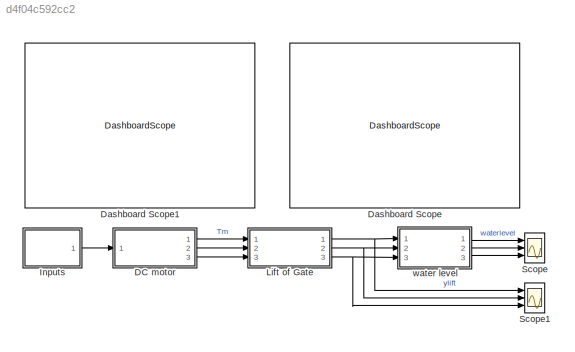
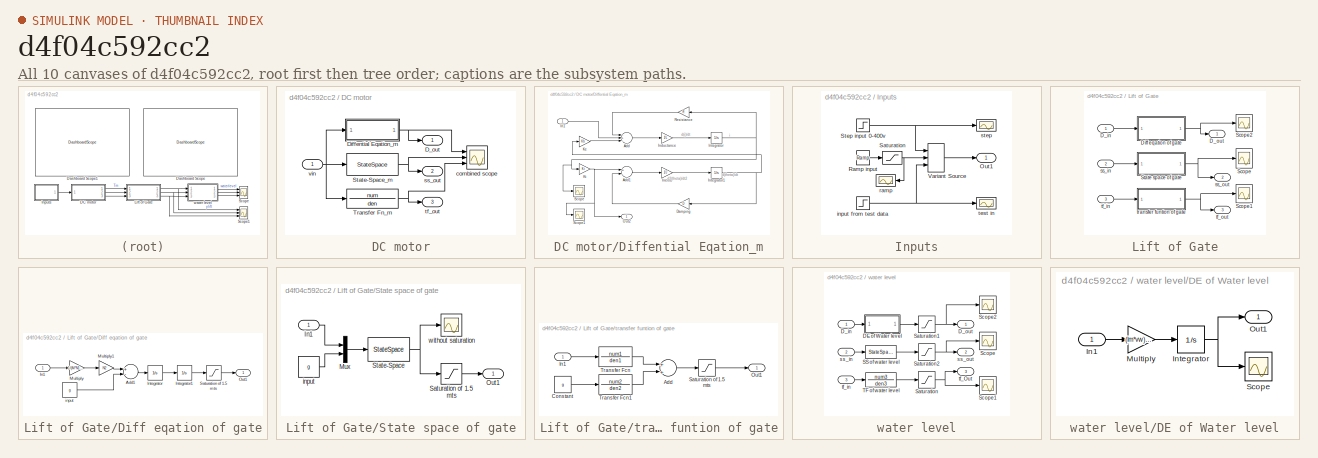
[diagram: thumbnail index - all 10 canvases of the model, root first then tree order]
MODEL slx_d4f04c592cc2
KIND model
CONFIG AbsTol = auto
CONFIG EnableMultiTasking = off
CONFIG FixedStep = auto
CONFIG MaxStep = auto
CONFIG MinStep = auto
CONFIG RelTol = 1e-3
CONFIG SampleTimeConstraint = Unconstrained
CONFIG Solver = VariableStepAuto
CONFIG SolverName = VariableStepAuto
CONFIG StartTime = 0.0
CONFIG StopTime = sim_time 
BLOCK [SubSystem] DC motor
  Ports = [1, 3]
  RequestExecContextInheritance = off
BLOCK [Outport] DC motor/D_out
  IconDisplay = Port number
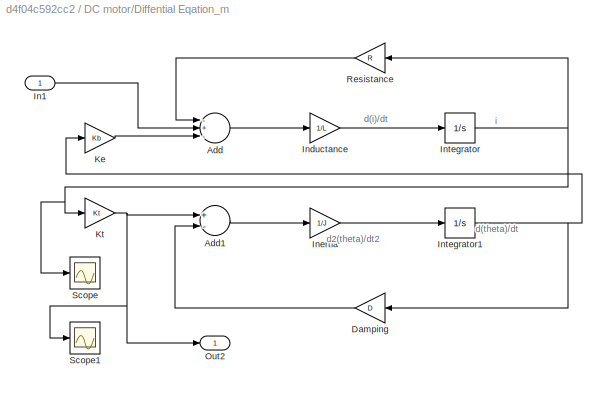
BLOCK [SubSystem] DC motor/Diffential Eqation_m
  Ports = [1, 1]
  RequestExecContextInheritance = off
BLOCK [Sum] DC motor/Diffential Eqation_m/Add
  InputSameDT = off
  Inputs = -+-
  OutDataTypeStr = Inherit: Inherit via internal rule
  Ports = [3, 1]
  SaturateOnIntegerOverflow = off
BLOCK [Sum] DC motor/Diffential Eqation_m/Add1
  InputSameDT = off
  Inputs = +-
  OutDataTypeStr = Inherit: Inherit via internal rule
  Ports = [2, 1]
  SaturateOnIntegerOverflow = off
BLOCK [Gain] DC motor/Diffential Eqation_m/Damping
  Gain = D
  OutDataTypeStr = Inherit: Inherit via internal rule
  ParamDataTypeStr = Inherit: Inherit via internal rule
  SaturateOnIntegerOverflow = off
BLOCK [Inport] DC motor/Diffential Eqation_m/In1
  IconDisplay = Port number
BLOCK [Gain] DC motor/Diffential Eqation_m/Inductance
  Gain = 1/L
  OutDataTypeStr = Inherit: Inherit via internal rule
  ParamDataTypeStr = Inherit: Inherit via internal rule
  SaturateOnIntegerOverflow = off
BLOCK [Gain] DC motor/Diffential Eqation_m/Inertia
  Gain = 1/J
  OutDataTypeStr = Inherit: Inherit via internal rule
  ParamDataTypeStr = Inherit: Inherit via internal rule
  SaturateOnIntegerOverflow = off
BLOCK [Integrator] DC motor/Diffential Eqation_m/Integrator
  Ports = [1, 1]
BLOCK [Integrator] DC motor/Diffential Eqation_m/Integrator1
  Ports = [1, 1]
BLOCK [Gain] DC motor/Diffential Eqation_m/Ke
  Gain = Kb
  OutDataTypeStr = Inherit: Inherit via internal rule
  ParamDataTypeStr = Inherit: Inherit via internal rule
  SaturateOnIntegerOverflow = off
BLOCK [Gain] DC motor/Diffential Eqation_m/Kt
  Gain = Kt
  OutDataTypeStr = Inherit: Inherit via internal rule
  ParamDataTypeStr = Inherit: Inherit via internal rule
  SaturateOnIntegerOverflow = off
BLOCK [Outport] DC motor/Diffential Eqation_m/Out2
  IconDisplay = Port number
BLOCK [Gain] DC motor/Diffential Eqation_m/Resistance
  Gain = R
  OutDataTypeStr = Inherit: Inherit via internal rule
  ParamDataTypeStr = Inherit: Inherit via internal rule
  SaturateOnIntegerOverflow = off
BLOCK [Scope] DC motor/Diffential Eqation_m/Scope
  Floating = off
  NumInputPorts = 1
  Ports = [1]
  ScopeSpecificationString = Simulink.scopes.TimeScopeBlockCfg('CurrentConfiguration', extmgr.ConfigurationSet(extmgr.Configuration('Core','General UI',true),extmgr.Configuration('Core','Source UI',true),extmgr.Configuration('Sources','WiredSimulink',true,'DataLoggingVariableName','i','DataLogging',true,'DataLoggingSaveFormat','Array'),extmgr.Configuration('Visuals','Time Domain',true,'SerializedDisplays',{struct('MinYLimReal...<+1452ch>
BLOCK [Scope] DC motor/Diffential Eqation_m/Scope1
  Floating = off
  NumInputPorts = 1
  Ports = [1]
  ScopeSpecificationString = Simulink.scopes.TimeScopeBlockCfg('CurrentConfiguration', extmgr.ConfigurationSet(extmgr.Configuration('Core','General UI',true),extmgr.Configuration('Core','Source UI',true),extmgr.Configuration('Sources','WiredSimulink',true,'DataLoggingVariableName','tm','DataLogging',true,'DataLoggingSaveFormat','Array'),extmgr.Configuration('Visuals','Time Domain',true,'SerializedDisplays',{struct('MinYLimRea...<+1453ch>
BLOCK [StateSpace] DC motor/State-Space_m 
  A = A_mat_m
  B = B_mat_m
  C = C_mat_m
  D = D_mat_m
  InitialCondition = 0
  Ports = [1, 1]
BLOCK [TransferFcn] DC motor/Transfer Fn_m
  Denominator = den
  Numerator = num
BLOCK [Scope] DC motor/combined scope
  Floating = off
  NumInputPorts = 3
  Ports = [3]
  ScopeSpecificationString = Simulink.scopes.TimeScopeBlockCfg('CurrentConfiguration', extmgr.ConfigurationSet(extmgr.Configuration('Core','General UI',true),extmgr.Configuration('Core','Source UI',true),extmgr.Configuration('Sources','WiredSimulink',true),extmgr.Configuration('Visuals','Time Domain',true,'SerializedDisplays',{struct('MinYLimReal','1105.10383','MaxYLimReal','1589.54449','YLabelReal','','MinYLimMag','1105.1038...<+1470ch>
BLOCK [Outport] DC motor/ss_out
  IconDisplay = Port number
  Port = 2
BLOCK [Outport] DC motor/tf_out
  IconDisplay = Port number
  Port = 3
BLOCK [Inport] DC motor/vin
  IconDisplay = Port number
BLOCK [DashboardScope] Dashboard Scope
  Ymax = 21
BLOCK [DashboardScope] Dashboard Scope1
BLOCK [SubSystem] Inputs
  Ports = [0, 1]
  RequestExecContextInheritance = off
BLOCK [Step] Inputs/ input from test data
  After = 400
  SampleTime = 0
  Time = 0
BLOCK [Outport] Inputs/Out1
  IconDisplay = Port number
BLOCK [Reference] Inputs/Ramp input   REF=simulink/Sources/Ramp
  Ports = [0, 1]
  SourceBlock = simulink/Sources/Ramp
  SourceProductBaseCode = SL
  SourceProductName = Simulink
  SourceType = Ramp
BLOCK [Saturate] Inputs/Saturation
  InputPortMap = u0
  LowerLimit = 0
  Ports = [1, 1]
  UpperLimit = 400
BLOCK [Step] Inputs/Step input 0-400v
  After = Step_input
  SampleTime = 0
  Time = step_time
BLOCK [VariantSource] Inputs/Variant Source 
  Ports = [3, 1]
BLOCK [Scope] Inputs/ramp
  Floating = off
  NumInputPorts = 1
  Ports = [1]
  ScopeSpecificationString = Simulink.scopes.TimeScopeBlockCfg('CurrentConfiguration', extmgr.ConfigurationSet(extmgr.Configuration('Core','General UI',true),extmgr.Configuration('Core','Source UI',true),extmgr.Configuration('Sources','WiredSimulink',true,'DataLoggingVariableName','in2','DataLogging',true,'DataLoggingSaveFormat','Array'),extmgr.Configuration('Visuals','Time Domain',true,'SerializedDisplays',{struct('MinYLimRe...<+1450ch>
BLOCK [Scope] Inputs/step
  Floating = off
  NumInputPorts = 1
  Ports = [1]
  ScopeSpecificationString = Simulink.scopes.TimeScopeBlockCfg('CurrentConfiguration', extmgr.ConfigurationSet(extmgr.Configuration('Core','General UI',true),extmgr.Configuration('Core','Source UI',true),extmgr.Configuration('Sources','WiredSimulink',true,'DataLoggingVariableName','in','DataLogging',true,'DataLoggingSaveFormat','Array'),extmgr.Configuration('Visuals','Time Domain',true,'SerializedDisplays',{struct('MinYLimRea...<+1429ch>
BLOCK [Scope] Inputs/test in
  Floating = off
  NumInputPorts = 1
  Ports = [1]
  ScopeSpecificationString = Simulink.scopes.TimeScopeBlockCfg('CurrentConfiguration', extmgr.ConfigurationSet(extmgr.Configuration('Core','General UI',true),extmgr.Configuration('Core','Source UI',true),extmgr.Configuration('Sources','WiredSimulink',true,'DataLoggingVariableName','tin','DataLogging',true,'DataLoggingSaveFormat','Array'),extmgr.Configuration('Visuals','Time Domain',true,'SerializedDisplays',{struct('MinYLimRe...<+1438ch>
BLOCK [SubSystem] Lift of Gate
  Ports = [3, 3]
  RequestExecContextInheritance = off
BLOCK [Inport] Lift of Gate/D_in
  IconDisplay = Port number
BLOCK [Outport] Lift of Gate/D_out
  IconDisplay = Port number
BLOCK [SubSystem] Lift of Gate/Diff eqation of gate
  Ports = [1, 1]
  RequestExecContextInheritance = off
BLOCK [Sum] Lift of Gate/Diff eqation of gate/Add1
  InputSameDT = off
  Inputs = +-
  OutDataTypeStr = Inherit: Inherit via internal rule
  Ports = [2, 1]
  SaturateOnIntegerOverflow = off
BLOCK [Inport] Lift of Gate/Diff eqation of gate/In1
  IconDisplay = Port number
BLOCK [Integrator] Lift of Gate/Diff eqation of gate/Integrator
  Ports = [1, 1]
BLOCK [Integrator] Lift of Gate/Diff eqation of gate/Integrator1
  Ports = [1, 1]
BLOCK [Gain] Lift of Gate/Diff eqation of gate/Multiply
  Gain = 1/(M*N1*rp)
  OutDataTypeStr = Inherit: Inherit via internal rule
  ParamDataTypeStr = Inherit: Inherit via internal rule
  SaturateOnIntegerOverflow = off
BLOCK [Gain] Lift of Gate/Diff eqation of gate/Multiply1
  Gain = N2
  OutDataTypeStr = Inherit: Inherit via internal rule
  ParamDataTypeStr = Inherit: Inherit via internal rule
  SaturateOnIntegerOverflow = off
BLOCK [Outport] Lift of Gate/Diff eqation of gate/Out1
  IconDisplay = Port number
BLOCK [Saturate] Lift of Gate/Diff eqation of gate/Saturation of 1.5 mts
  InputPortMap = u0
  LowerLimit = 0
  Ports = [1, 1]
  UpperLimit = 1.5
BLOCK [Constant] Lift of Gate/Diff eqation of gate/input
  Value = g
BLOCK [Scope] Lift of Gate/Scope
  Floating = off
  NumInputPorts = 1
  Ports = [1]
  ScopeSpecificationString = Simulink.scopes.TimeScopeBlockCfg('CurrentConfiguration', extmgr.ConfigurationSet(extmgr.Configuration('Core','General UI',true),extmgr.Configuration('Core','Source UI',true),extmgr.Configuration('Sources','WiredSimulink',true,'DataLoggingVariableName','sslift','DataLogging',true,'DataLoggingSaveFormat','Array'),extmgr.Configuration('Visuals','Time Domain',true,'SerializedDisplays',{struct('MinYLi...<+1419ch>
BLOCK [Scope] Lift of Gate/Scope1
  Floating = off
  NumInputPorts = 1
  Ports = [1]
  ScopeSpecificationString = Simulink.scopes.TimeScopeBlockCfg('CurrentConfiguration', extmgr.ConfigurationSet(extmgr.Configuration('Core','General UI',true),extmgr.Configuration('Core','Source UI',true),extmgr.Configuration('Sources','WiredSimulink',true,'DataLoggingVariableName','tflift','DataLogging',true,'DataLoggingSaveFormat','Array'),extmgr.Configuration('Visuals','Time Domain',true,'SerializedDisplays',{struct('MinYLi...<+1454ch>
BLOCK [Scope] Lift of Gate/Scope2
  Floating = off
  NumInputPorts = 1
  Ports = [1]
  ScopeSpecificationString = Simulink.scopes.TimeScopeBlockCfg('CurrentConfiguration', extmgr.ConfigurationSet(extmgr.Configuration('Core','General UI',true),extmgr.Configuration('Core','Source UI',true),extmgr.Configuration('Sources','WiredSimulink',true,'DataLoggingVariableName','glift','DataLogging',true,'DataLoggingSaveFormat','Array'),extmgr.Configuration('Visuals','Time Domain',true,'SerializedDisplays',{struct('MinYLim...<+1419ch>
BLOCK [SubSystem] Lift of Gate/State space of gate
  Ports = [1, 1]
  RequestExecContextInheritance = off
BLOCK [Inport] Lift of Gate/State space of gate/In1
  IconDisplay = Port number
BLOCK [Mux] Lift of Gate/State space of gate/Mux
  DisplayOption = signals
  Inputs = 2
  Ports = [2, 1]
BLOCK [Outport] Lift of Gate/State space of gate/Out1
  IconDisplay = Port number
BLOCK [Saturate] Lift of Gate/State space of gate/Saturation of 1.5 mts
  InputPortMap = u0
  LowerLimit = 0
  Ports = [1, 1]
  UpperLimit = 1.5
BLOCK [StateSpace] Lift of Gate/State space of gate/State-Space
  A = A_mat_d
  B = B_mat_d
  C = C_mat_d
  D = D_mat_d
  InitialCondition = 0
  Ports = [1, 1]
BLOCK [Constant] Lift of Gate/State space of gate/input
  Value = g
BLOCK [Scope] Lift of Gate/State space of gate/without saturation
  Floating = off
  NumInputPorts = 1
  Ports = [1]
  ScopeSpecificationString = Simulink.scopes.TimeScopeBlockCfg('CurrentConfiguration', extmgr.ConfigurationSet(extmgr.Configuration('Core','General UI',true),extmgr.Configuration('Core','Source UI',true),extmgr.Configuration('Sources','WiredSimulink',true,'DataLoggingVariableName','ScopeData1'),extmgr.Configuration('Visuals','Time Domain',true,'SerializedDisplays',{struct('MinYLimReal','-80.25487','MaxYLimReal','713.03494','Y...<+1407ch>
BLOCK [Inport] Lift of Gate/ss_in
  IconDisplay = Port number
  Port = 2
BLOCK [Outport] Lift of Gate/ss_out
  IconDisplay = Port number
  Port = 2
BLOCK [Inport] Lift of Gate/tf_in
  IconDisplay = Port number
  Port = 3
BLOCK [Outport] Lift of Gate/tf_out
  IconDisplay = Port number
  Port = 3
BLOCK [SubSystem] Lift of Gate/transfer funtion of gate
  Ports = [1, 1]
  RequestExecContextInheritance = off
BLOCK [Sum] Lift of Gate/transfer funtion of gate/Add
  InputSameDT = off
  OutDataTypeStr = Inherit: Inherit via internal rule
  Ports = [2, 1]
  SaturateOnIntegerOverflow = off
BLOCK [Constant] Lift of Gate/transfer funtion of gate/Constant
  Value = g
BLOCK [Inport] Lift of Gate/transfer funtion of gate/In1
  IconDisplay = Port number
BLOCK [Outport] Lift of Gate/transfer funtion of gate/Out1
  IconDisplay = Port number
BLOCK [Saturate] Lift of Gate/transfer funtion of gate/Saturation of 1.5 mts
  InputPortMap = u0
  LowerLimit = 0
  Ports = [1, 1]
  UpperLimit = 1.5
BLOCK [TransferFcn] Lift of Gate/transfer funtion of gate/Transfer Fcn
  Denominator = den1
  Numerator = num1
BLOCK [TransferFcn] Lift of Gate/transfer funtion of gate/Transfer Fcn1
  Denominator = den2
  Numerator = num2
BLOCK [Scope] Scope
  Floating = off
  NumInputPorts = 3
  Ports = [3]
  ScopeSpecificationString = Simulink.scopes.TimeScopeBlockCfg('CurrentConfiguration', extmgr.ConfigurationSet(extmgr.Configuration('Core','General UI',true),extmgr.Configuration('Core','Source UI',true),extmgr.Configuration('Sources','WiredSimulink',true,'DataLoggingVariableName','ScopeData4','DataLogging',true,'DataLoggingSaveFormat','Structure'),extmgr.Configuration('Visuals','Time Domain',true,'SerializedDisplays',{struct...<+1490ch>
BLOCK [Scope] Scope1
  Floating = off
  NumInputPorts = 3
  Ports = [3]
  ScopeSpecificationString = Simulink.scopes.TimeScopeBlockCfg('CurrentConfiguration', extmgr.ConfigurationSet(extmgr.Configuration('Core','General UI',true),extmgr.Configuration('Core','Source UI',true),extmgr.Configuration('Sources','WiredSimulink',true,'DataLoggingVariableName','ScopeData5'),extmgr.Configuration('Visuals','Time Domain',true,'SerializedDisplays',{struct('MinYLimReal','-0.1875','MaxYLimReal','1.6875','YLabel...<+1419ch>
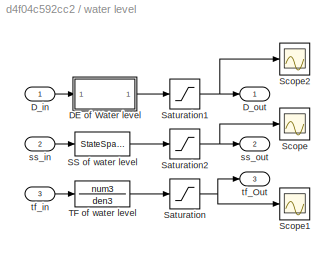
BLOCK [SubSystem] water level
  Ports = [3, 3]
  RequestExecContextInheritance = off
BLOCK [SubSystem] water level/DE of Water level
  Ports = [1, 1]
  RequestExecContextInheritance = off
BLOCK [Inport] water level/DE of Water level/In1
  IconDisplay = Port number
BLOCK [Integrator] water level/DE of Water level/Integrator
  Ports = [1, 1]
BLOCK [Gain] water level/DE of Water level/Multiply
  Gain = (lm*vw)/(Ar)
  OutDataTypeStr = Inherit: Inherit via internal rule
  ParamDataTypeStr = Inherit: Inherit via internal rule
  SaturateOnIntegerOverflow = off
BLOCK [Outport] water level/DE of Water level/Out1
  IconDisplay = Port number
BLOCK [Scope] water level/DE of Water level/Scope
  Floating = off
  NumInputPorts = 1
  Ports = [1]
  ScopeSpecificationString = Simulink.scopes.TimeScopeBlockCfg('CurrentConfiguration', extmgr.ConfigurationSet(extmgr.Configuration('Core','General UI',true),extmgr.Configuration('Core','Source UI',true),extmgr.Configuration('Sources','WiredSimulink',true,'DataLoggingVariableName','ScopeData2'),extmgr.Configuration('Visuals','Time Domain',true,'SerializedDisplays',{struct('MinYLimReal','-0.12842','MaxYLimReal','1.15579','YLab...<+1396ch>
BLOCK [Inport] water level/D_in
  IconDisplay = Port number
BLOCK [Outport] water level/D_out
  IconDisplay = Port number
BLOCK [StateSpace] water level/SS of water level
  A = A_mat_wl
  B = B_mat_wl
  C = C_mat_wl
  D = D_mat_wl
  InitialCondition = 0
  Ports = [1, 1]
BLOCK [Saturate] water level/Saturation
  InputPortMap = u0
  LowerLimit = 0
  Ports = [1, 1]
  UpperLimit = 20
BLOCK [Saturate] water level/Saturation1
  InputPortMap = u0
  Ports = [1, 1]
  UpperLimit = 20
BLOCK [Saturate] water level/Saturation2
  InputPortMap = u0
  LowerLimit = 0
  Ports = [1, 1]
  UpperLimit = 20
BLOCK [Scope] water level/Scope
  Floating = off
  NumInputPorts = 1
  Ports = [1]
  ScopeSpecificationString = Simulink.scopes.TimeScopeBlockCfg('CurrentConfiguration', extmgr.ConfigurationSet(extmgr.Configuration('Core','General UI',true),extmgr.Configuration('Core','Source UI',true),extmgr.Configuration('Sources','WiredSimulink',true,'DataLoggingVariableName','sswl','DataLogging',true,'DataLoggingSaveFormat','Array'),extmgr.Configuration('Visuals','Time Domain',true,'SerializedDisplays',{struct('MinYLimR...<+1421ch>
BLOCK [Scope] water level/Scope1
  Floating = off
  NumInputPorts = 1
  Ports = [1]
  ScopeSpecificationString = Simulink.scopes.TimeScopeBlockCfg('CurrentConfiguration', extmgr.ConfigurationSet(extmgr.Configuration('Core','General UI',true),extmgr.Configuration('Core','Source UI',true),extmgr.Configuration('Sources','WiredSimulink',true,'DataLoggingVariableName','tfwl','DataLogging',true,'DataLoggingSaveFormat','Array'),extmgr.Configuration('Visuals','Time Domain',true,'SerializedDisplays',{struct('MinYLimR...<+1467ch>
BLOCK [Scope] water level/Scope2
  Floating = off
  NumInputPorts = 1
  Ports = [1]
  ScopeSpecificationString = Simulink.scopes.TimeScopeBlockCfg('CurrentConfiguration', extmgr.ConfigurationSet(extmgr.Configuration('Core','General UI',true),extmgr.Configuration('Core','Source UI',true),extmgr.Configuration('Sources','WiredSimulink',true,'DataLoggingVariableName','gwl','DataLogging',true,'DataLoggingSaveFormat','Array'),extmgr.Configuration('Visuals','Time Domain',true,'SerializedDisplays',{struct('MinYLimRe...<+1420ch>
BLOCK [TransferFcn] water level/TF of water level
  Denominator = den3
  Numerator = num3
BLOCK [Inport] water level/ss_in
  IconDisplay = Port number
  Port = 2
BLOCK [Outport] water level/ss_out
  IconDisplay = Port number
  Port = 2
BLOCK [Outport] water level/tf_Out
  IconDisplay = Port number
  Port = 3
BLOCK [Inport] water level/tf_in
  IconDisplay = Port number
  Port = 3
ANNOTATION DC motor/Diffential Eqation_m: d2 (theta) /dt2
ANNOTATION DC motor/Diffential Eqation_m: d (i) /dt
ANNOTATION DC motor/Diffential Eqation_m: d (theta) /dt
ANNOTATION DC motor/Diffential Eqation_m: i
LINE DC motor/Diffential Eqation_m/Add1:1 -> DC motor/Diffential Eqation_m/Inertia:1
LINE DC motor/Diffential Eqation_m/Add:1 -> DC motor/Diffential Eqation_m/Inductance:1
LINE DC motor/Diffential Eqation_m/Damping:1 -> DC motor/Diffential Eqation_m/Add1:2
LINE DC motor/Diffential Eqation_m/In1:1 -> DC motor/Diffential Eqation_m/Add:2
LINE DC motor/Diffential Eqation_m/Inductance:1 -> DC motor/Diffential Eqation_m/Integrator:1
LINE DC motor/Diffential Eqation_m/Inertia:1 -> DC motor/Diffential Eqation_m/Integrator1:1
NET DC motor/Diffential Eqation_m/Integrator1:1 -> DC motor/Diffential Eqation_m/Damping:1, DC motor/Diffential Eqation_m/Ke:1
NET DC motor/Diffential Eqation_m/Integrator:1 -> DC motor/Diffential Eqation_m/Kt:1, DC motor/Diffential Eqation_m/Resistance:1, DC motor/Diffential Eqation_m/Scope:1
LINE DC motor/Diffential Eqation_m/Ke:1 -> DC motor/Diffential Eqation_m/Add:3
NET DC motor/Diffential Eqation_m/Kt:1 -> DC motor/Diffential Eqation_m/Add1:1, DC motor/Diffential Eqation_m/Out2:1, DC motor/Diffential Eqation_m/Scope1:1
LINE DC motor/Diffential Eqation_m/Resistance:1 -> DC motor/Diffential Eqation_m/Add:1
NET DC motor/Diffential Eqation_m:1 -> DC motor/D_out:1, DC motor/combined scope:1
NET DC motor/State-Space_m :1 -> DC motor/combined scope:2, DC motor/ss_out:1
NET DC motor/Transfer Fn_m:1 -> DC motor/combined scope:3, DC motor/tf_out:1
NET DC motor/vin:1 -> DC motor/Diffential Eqation_m:1, DC motor/State-Space_m :1, DC motor/Transfer Fn_m:1
LINE DC motor:1 -> Lift of Gate:1
LINE DC motor:2 -> Lift of Gate:2
LINE DC motor:3 -> Lift of Gate:3
NET Inputs/ input from test data:1 -> Inputs/Variant Source :3, Inputs/test in:1
LINE Inputs/Ramp input :1 -> Inputs/Saturation:1
NET Inputs/Saturation:1 -> Inputs/Variant Source :2, Inputs/ramp:1
NET Inputs/Step input 0-400v:1 -> Inputs/Variant Source :1, Inputs/step:1
LINE Inputs/Variant Source :1 -> Inputs/Out1:1
LINE Inputs:1 -> DC motor:1
LINE Lift of Gate/D_in:1 -> Lift of Gate/Diff eqation of gate:1
LINE Lift of Gate/Diff eqation of gate/Add1:1 -> Lift of Gate/Diff eqation of gate/Integrator:1
LINE Lift of Gate/Diff eqation of gate/In1:1 -> Lift of Gate/Diff eqation of gate/Multiply:1
LINE Lift of Gate/Diff eqation of gate/Integrator1:1 -> Lift of Gate/Diff eqation of gate/Saturation of 1.5 mts:1
LINE Lift of Gate/Diff eqation of gate/Integrator:1 -> Lift of Gate/Diff eqation of gate/Integrator1:1
LINE Lift of Gate/Diff eqation of gate/Multiply1:1 -> Lift of Gate/Diff eqation of gate/Add1:1
LINE Lift of Gate/Diff eqation of gate/Multiply:1 -> Lift of Gate/Diff eqation of gate/Multiply1:1
LINE Lift of Gate/Diff eqation of gate/Saturation of 1.5 mts:1 -> Lift of Gate/Diff eqation of gate/Out1:1
LINE Lift of Gate/Diff eqation of gate/input:1 -> Lift of Gate/Diff eqation of gate/Add1:2
NET Lift of Gate/Diff eqation of gate:1 -> Lift of Gate/D_out:1, Lift of Gate/Scope2:1
LINE Lift of Gate/State space of gate/In1:1 -> Lift of Gate/State space of gate/Mux:1
LINE Lift of Gate/State space of gate/Mux:1 -> Lift of Gate/State space of gate/State-Space:1
LINE Lift of Gate/State space of gate/Saturation of 1.5 mts:1 -> Lift of Gate/State space of gate/Out1:1
NET Lift of Gate/State space of gate/State-Space:1 -> Lift of Gate/State space of gate/Saturation of 1.5 mts:1, Lift of Gate/State space of gate/without saturation:1
LINE Lift of Gate/State space of gate/input:1 -> Lift of Gate/State space of gate/Mux:2
NET Lift of Gate/State space of gate:1 -> Lift of Gate/Scope:1, Lift of Gate/ss_out:1
LINE Lift of Gate/ss_in:1 -> Lift of Gate/State space of gate:1
LINE Lift of Gate/tf_in:1 -> Lift of Gate/transfer funtion of gate:1
LINE Lift of Gate/transfer funtion of gate/Add:1 -> Lift of Gate/transfer funtion of gate/Saturation of 1.5 mts:1
LINE Lift of Gate/transfer funtion of gate/Constant:1 -> Lift of Gate/transfer funtion of gate/Transfer Fcn1:1
LINE Lift of Gate/transfer funtion of gate/In1:1 -> Lift of Gate/transfer funtion of gate/Transfer Fcn:1
LINE Lift of Gate/transfer funtion of gate/Saturation of 1.5 mts:1 -> Lift of Gate/transfer funtion of gate/Out1:1
LINE Lift of Gate/transfer funtion of gate/Transfer Fcn1:1 -> Lift of Gate/transfer funtion of gate/Add:2
LINE Lift of Gate/transfer funtion of gate/Transfer Fcn:1 -> Lift of Gate/transfer funtion of gate/Add:1
NET Lift of Gate/transfer funtion of gate:1 -> Lift of Gate/Scope1:1, Lift of Gate/tf_out:1
NET Lift of Gate:1 -> Scope1:1, water level:1
NET Lift of Gate:2 -> Scope1:2, water level:2
NET Lift of Gate:3 -> Scope1:3, water level:3
LINE water level/DE of Water level/In1:1 -> water level/DE of Water level/Multiply:1
NET water level/DE of Water level/Integrator:1 -> water level/DE of Water level/Out1:1, water level/DE of Water level/Scope:1
LINE water level/DE of Water level/Multiply:1 -> water level/DE of Water level/Integrator:1
LINE water level/DE of Water level:1 -> water level/Saturation1:1
LINE water level/D_in:1 -> water level/DE of Water level:1
LINE water level/SS of water level:1 -> water level/Saturation2:1
NET water level/Saturation1:1 -> water level/D_out:1, water level/Scope2:1
NET water level/Saturation2:1 -> water level/Scope:1, water level/ss_out:1
NET water level/Saturation:1 -> water level/Scope1:1, water level/tf_Out:1
LINE water level/TF of water level:1 -> water level/Saturation:1
LINE water level/ss_in:1 -> water level/SS of water level:1
LINE water level/tf_in:1 -> water level/TF of water level:1
LINE water level:1 -> Scope:1
LINE water level:2 -> Scope:2
LINE water level:3 -> Scope:3
note: NET lines group one-source signal fan-out (src -> all destinations, sorted); 1:1 wires keep LINE
